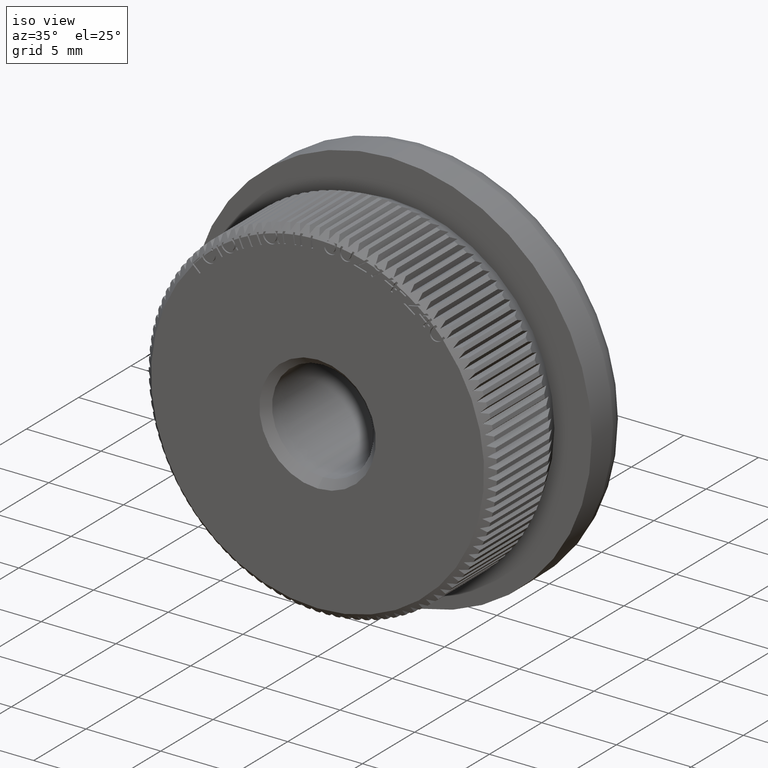
[diagram: clean part render]
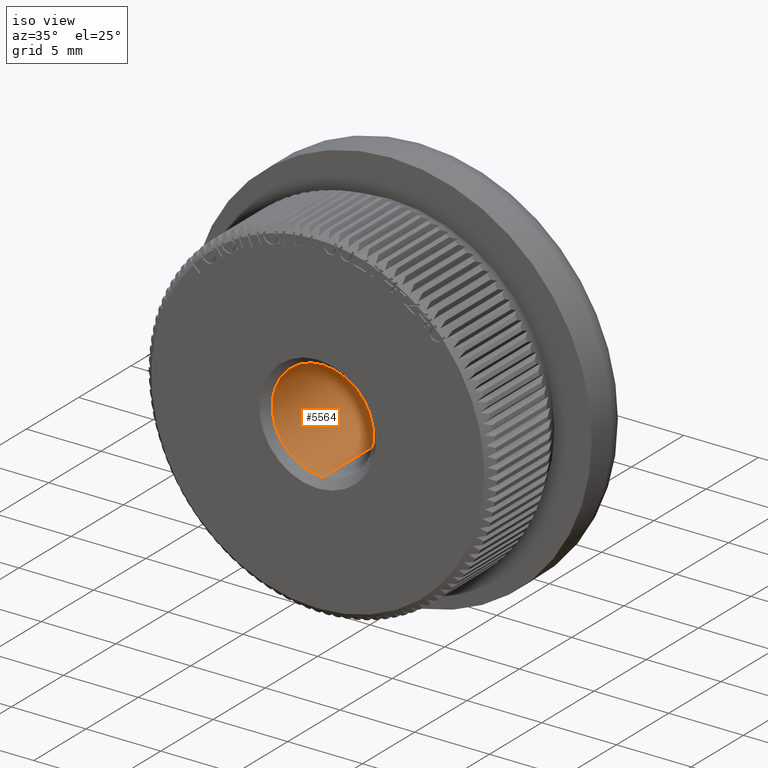
[diagram: same view with one face highlighted and labeled with its STEP entity id]
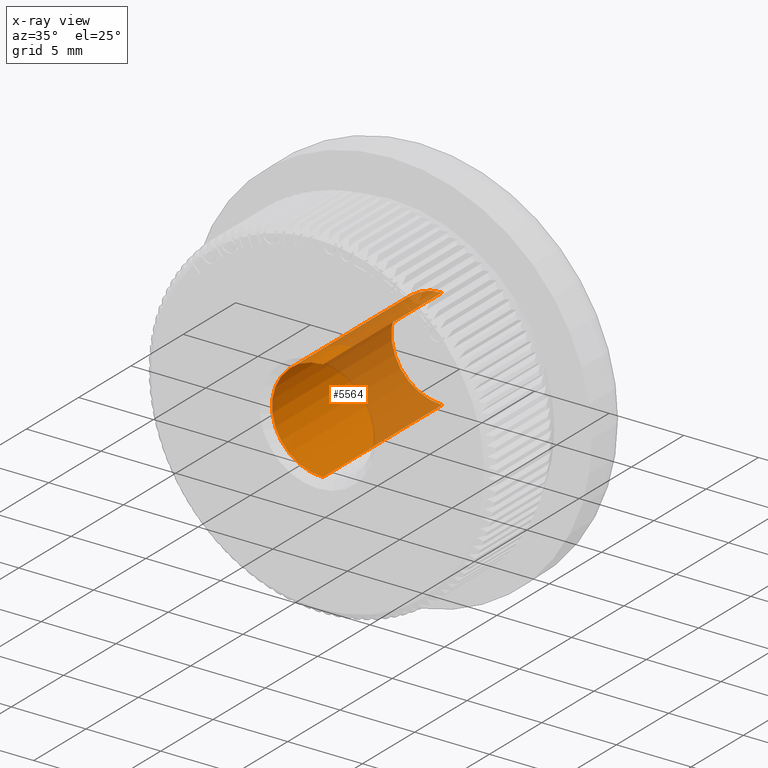
[diagram: x-ray of the same camera — body ghosted, the highlighted face saturated]
A machine part, iso view. The second image highlights one B-rep face of the part: STEP entity #5564.
The next image is the same camera in x-ray: the body ghosted, the highlighted face saturated — about 44% of this face is hidden behind the body in this view.
In plain terms, the highlighted cylindrical surface (partial cylindrical patch) has radius 3.4 mm, axis along (-0, -1, -0).
Its self-contained STEP definition (entity closure, byte-faithful):
#103 = AXIS2_PLACEMENT_3D ( 'NONE', #4732, #6067, #7684 ) ;
#381 = ORIENTED_EDGE ( 'NONE', *, *, #2099, .T. ) ;
#632 = EDGE_CURVE ( 'NONE', #7272, #2470, #15227, .T. ) ;
#1199 = VERTEX_POINT ( 'NONE', #6286 ) ;
#1610 = DIRECTION ( 'NONE',  ( 0.0000000000000000000, 1.000000000000000000, 0.0000000000000000000 ) ) ;
#1619 = ORIENTED_EDGE ( 'NONE', *, *, #20482, .F. ) ;
#2099 = EDGE_CURVE ( 'NONE', #2470, #1199, #15921, .T. ) ;
#2304 = ORIENTED_EDGE ( 'NONE', *, *, #632, .T. ) ;
#2470 = VERTEX_POINT ( 'NONE', #9957 ) ;
#2599 = FACE_OUTER_BOUND ( 'NONE', #7655, .T. ) ;
#2731 = EDGE_CURVE ( 'NONE', #1199, #8543, #5392, .T. ) ;
#3397 = DIRECTION ( 'NONE',  ( -0.0000000000000000000, -1.000000000000000000, -0.0000000000000000000 ) ) ;
#4732 = CARTESIAN_POINT ( 'NONE',  ( 0.0000000000000000000, 0.4999999999999961100, 0.0000000000000000000 ) ) ;
#4959 = VECTOR ( 'NONE', #3397, 1000.000000000000000 ) ;
#5392 = CIRCLE ( 'NONE', #103, 3.399999999999995500 ) ;
#5564 = ADVANCED_FACE ( 'NONE', ( #2599 ), #17618, .F. ) ;
#5630 = AXIS2_PLACEMENT_3D ( 'NONE', #13278, #9912, #14952 ) ;
#6067 = DIRECTION ( 'NONE',  ( 0.0000000000000000000, -1.000000000000000000, 0.0000000000000000000 ) ) ;
#6286 = CARTESIAN_POINT ( 'NONE',  ( 4.163799117100995600E-016, 0.4999999999999961100, 3.399999999999995500 ) ) ;
#7272 = VERTEX_POINT ( 'NONE', #11675 ) ;
#7304 = CARTESIAN_POINT ( 'NONE',  ( 4.163799117100995600E-016, 0.0000000000000000000, 3.399999999999995500 ) ) ;
#7358 = ORIENTED_EDGE ( 'NONE', *, *, #2731, .T. ) ;
#7655 = EDGE_LOOP ( 'NONE', ( #2304, #381, #7358, #1619 ) ) ;
#7684 = DIRECTION ( 'NONE',  ( 0.0000000000000000000, 0.0000000000000000000, -1.000000000000000000 ) ) ;
#8155 = VECTOR ( 'NONE', #17048, 1000.000000000000000 ) ;
#8543 = VERTEX_POINT ( 'NONE', #10502 ) ;
#9519 = CARTESIAN_POINT ( 'NONE',  ( 0.0000000000000000000, 11.90910994499173200, 0.0000000000000000000 ) ) ;
#9912 = DIRECTION ( 'NONE',  ( -0.0000000000000000000, -1.000000000000000000, -0.0000000000000000000 ) ) ;
#9957 = CARTESIAN_POINT ( 'NONE',  ( 4.163799117100995600E-016, 11.90910994499173200, 3.399999999999995500 ) ) ;
#10502 = CARTESIAN_POINT ( 'NONE',  ( 0.0000000000000000000, 0.4999999999999961100, -3.399999999999995500 ) ) ;
#11675 = CARTESIAN_POINT ( 'NONE',  ( 0.0000000000000000000, 11.90910994499173200, -3.399999999999995500 ) ) ;
#13010 = LINE ( 'NONE', #16009, #4959 ) ;
#13278 = CARTESIAN_POINT ( 'NONE',  ( 0.0000000000000000000, 0.0000000000000000000, 0.0000000000000000000 ) ) ;
#14952 = DIRECTION ( 'NONE',  ( 0.0000000000000000000, 0.0000000000000000000, -1.000000000000000000 ) ) ;
#15227 = CIRCLE ( 'NONE', #19923, 3.399999999999995500 ) ;
#15921 = LINE ( 'NONE', #7304, #8155 ) ;
#16009 = CARTESIAN_POINT ( 'NONE',  ( 0.0000000000000000000, 0.0000000000000000000, -3.399999999999995500 ) ) ;
#16157 = DIRECTION ( 'NONE',  ( 0.0000000000000000000, 0.0000000000000000000, 1.000000000000000000 ) ) ;
#17048 = DIRECTION ( 'NONE',  ( -0.0000000000000000000, -1.000000000000000000, -0.0000000000000000000 ) ) ;
#17618 = CYLINDRICAL_SURFACE ( 'NONE', #5630, 3.399999999999995500 ) ;
#19923 = AXIS2_PLACEMENT_3D ( 'NONE', #9519, #1610, #16157 ) ;
#20482 = EDGE_CURVE ( 'NONE', #7272, #8543, #13010, .T. ) ;